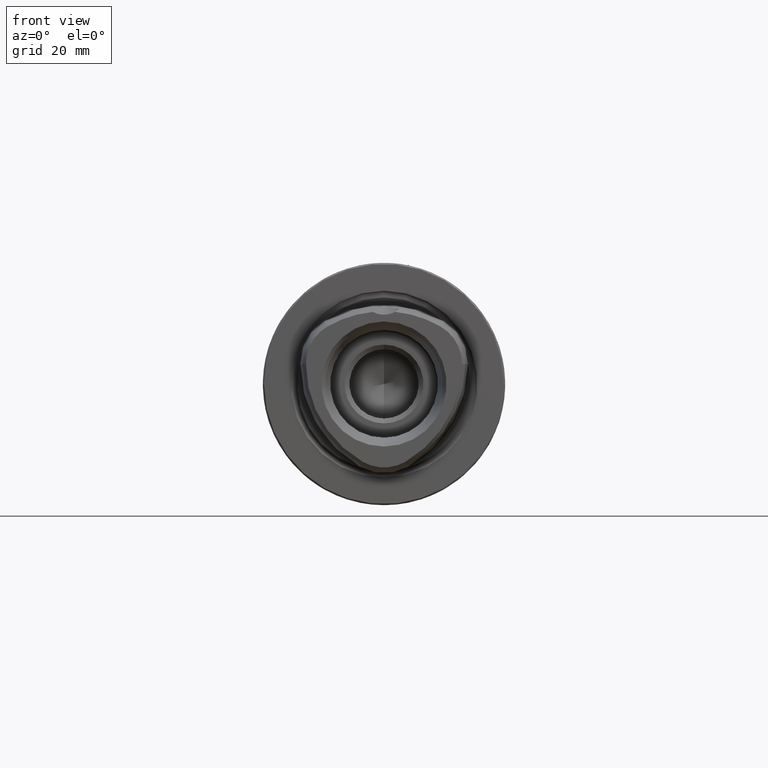
[diagram: clean part render]
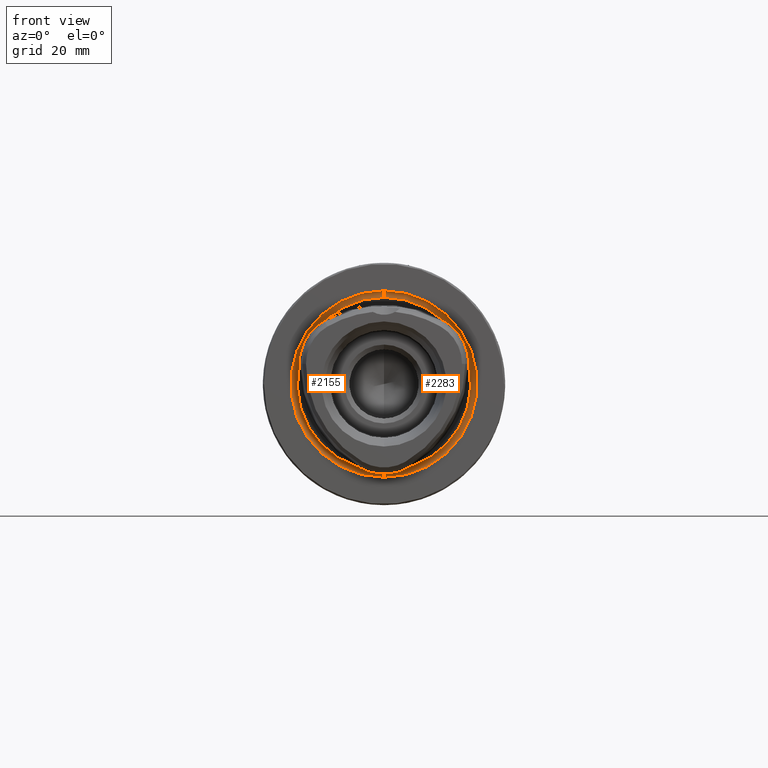
[diagram: same view with one multi-face feature highlighted, each face labeled with its STEP entity id]
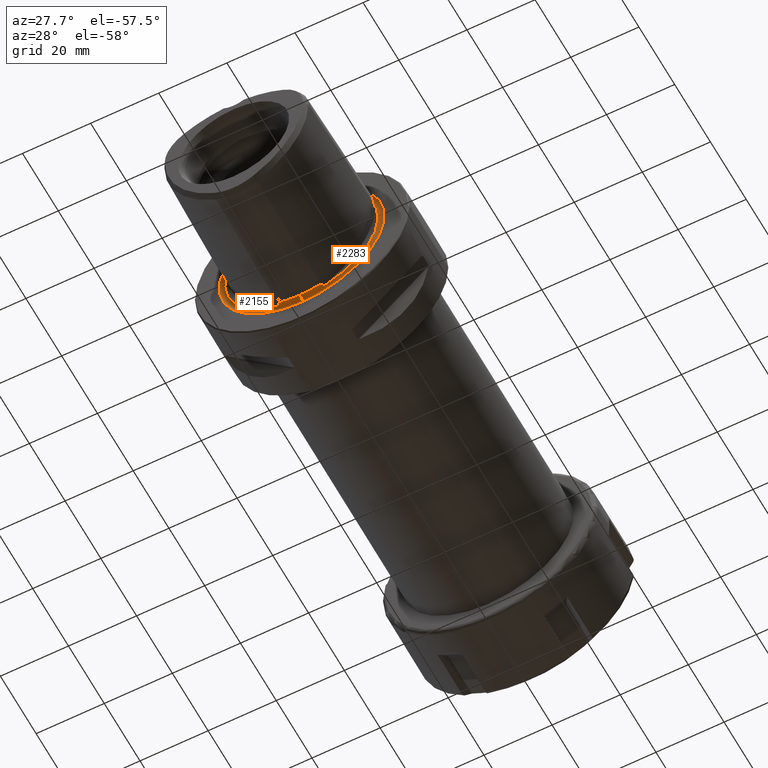
[diagram: same view with one multi-face feature highlighted, each face labeled with its STEP entity id]
A machine part, front view. The highlighted faces form ONE feature: a constant-radius fillet chain: 2 tangent blend faces with common blend radius 1 mm. The faces share edges in the B-rep.
A second angle (auxiliary view) of the same feature is appended — it is thin or edge-on in the first view.
Their STEP definitions:
[1] entity #2283 (Torus):
#6=CARTESIAN_POINT('',(0.E0,-2.E-1,0.E0));
#7=DIRECTION('',(0.E0,-1.E0,0.E0));
#8=DIRECTION('',(6.658709666680E-1,0.E0,7.460669244435E-1));
#9=AXIS2_PLACEMENT_3D('',#6,#7,#8);
#26=CARTESIAN_POINT('',(0.E0,-2.E-1,0.E0));
#27=DIRECTION('',(0.E0,-1.E0,0.E0));
#28=DIRECTION('',(3.131774275690E-1,0.E0,-9.496946345333E-1));
#29=AXIS2_PLACEMENT_3D('',#26,#27,#28);
#98=CARTESIAN_POINT('',(0.E0,-6.E-1,-2.345E1));
#99=DIRECTION('',(1.E0,0.E0,0.E0));
#100=DIRECTION('',(0.E0,6.E-1,-8.E-1));
#101=AXIS2_PLACEMENT_3D('',#98,#99,#100);
#103=CARTESIAN_POINT('',(0.E0,-6.E-1,2.345E1));
#104=DIRECTION('',(-1.E0,0.E0,0.E0));
#105=DIRECTION('',(0.E0,6.E-1,8.E-1));
#106=AXIS2_PLACEMENT_3D('',#103,#104,#105);
#160=CARTESIAN_POINT('',(5.354621867281E0,-1.307106781187E0,-2.210355665093E1));
#166=CARTESIAN_POINT('',(0.E0,-1.307106781187E0,0.E0));
#167=DIRECTION('',(0.E0,-1.E0,0.E0));
#168=DIRECTION('',(0.E0,0.E0,-1.E0));
#169=AXIS2_PLACEMENT_3D('',#166,#167,#168);
#194=CARTESIAN_POINT('',(2.181955250733E1,-1.307106781187E0,6.414539760739E0));
#196=CARTESIAN_POINT('',(1.646493064005E1,-1.307106781187E0,1.568901689019E1));
#202=CARTESIAN_POINT('',(0.E0,-1.307106781187E0,0.E0));
#203=DIRECTION('',(0.E0,-1.E0,0.E0));
#204=DIRECTION('',(9.594009125138E-1,0.E0,2.820458988671E-1));
#205=AXIS2_PLACEMENT_3D('',#202,#203,#204);
#217=CARTESIAN_POINT('',(6.444111099421E0,-3.949768888776E-1,
-2.152742874010E1));
#218=CARTESIAN_POINT('',(6.466843756329E0,-4.285219770172E-1,
-2.151328899226E1));
#219=CARTESIAN_POINT('',(6.499910713214E0,-4.956858617722E-1,
-2.149211221277E1));
#220=CARTESIAN_POINT('',(6.508750291476E0,-6.075729291747E-1,
-2.148370595897E1));
#221=CARTESIAN_POINT('',(6.473569820909E0,-7.111560290561E-1,
-2.150118079242E1));
#222=CARTESIAN_POINT('',(6.406362602678E0,-8.055237990932E-1,
-2.153739593992E1));
#223=CARTESIAN_POINT('',(6.318164689657E0,-8.883103095725E-1,
-2.158576434973E1));
#224=CARTESIAN_POINT('',(6.218852354502E0,-9.600478737446E-1,
-2.164038833218E1));
#225=CARTESIAN_POINT('',(6.109368617277E0,-1.025045568227E0,-2.170046465427E1));
#226=CARTESIAN_POINT('',(5.986709464679E0,-1.086677413966E0,-2.176740871575E1));
#227=CARTESIAN_POINT('',(5.851031994199E0,-1.145343261433E0,-2.184089024308E1));
#228=CARTESIAN_POINT('',(5.701146893331E0,-1.201726492982E0,-2.192129080548E1));
#229=CARTESIAN_POINT('',(5.536385823377E0,-1.255908519550E0,-2.200866708670E1));
#230=CARTESIAN_POINT('',(5.416862863098E0,-1.290339718657E0,-2.207122662725E1));
#231=CARTESIAN_POINT('',(5.354621867281E0,-1.307106781187E0,-2.210355665093E1));
#233=CARTESIAN_POINT('',(6.444111099421E0,-3.949768888776E-1,
-2.152742874010E1));
#234=CARTESIAN_POINT('',(6.436132603523E0,-3.832035467106E-1,
-2.153239137692E1));
#235=CARTESIAN_POINT('',(6.426498417065E0,-3.607067491622E-1,
-2.154056471028E1));
#236=CARTESIAN_POINT('',(6.437417548755E0,-3.205098041948E-1,
-2.154858739091E1));
#237=CARTESIAN_POINT('',(6.471932539151E0,-2.901159892790E-1,
-2.154818464104E1));
#238=CARTESIAN_POINT('',(6.515264757031E0,-2.675089536253E-1,
-2.154318309320E1));
#239=CARTESIAN_POINT('',(6.565292054649E0,-2.497145708955E-1,
-2.153478273473E1));
#240=CARTESIAN_POINT('',(6.620732877254E0,-2.354496274850E-1,
-2.152353655505E1));
#241=CARTESIAN_POINT('',(6.681411331071E0,-2.239607407031E-1,
-2.150959297774E1));
#242=CARTESIAN_POINT('',(6.747140958899E0,-2.148569028662E-1,
-2.149300207828E1));
#243=CARTESIAN_POINT('',(6.818651519471E0,-2.079206638095E-1,
-2.147352696168E1));
#244=CARTESIAN_POINT('',(6.893989389175E0,-2.030772469695E-1,
-2.145156887405E1));
#245=CARTESIAN_POINT('',(6.981629807386E0,-2.002662850820E-1,
-2.142484494214E1));
#246=CARTESIAN_POINT('',(7.028034198366E0,-1.999489322461E-1,
-2.140888520453E1));
#247=CARTESIAN_POINT('',(7.063354863197E0,-2.000013402356E-1,
-2.139717727189E1));
#249=CARTESIAN_POINT('',(2.206207802627E1,-2.000013335964E-1,4.582014144035E0));
#250=CARTESIAN_POINT('',(2.205411401893E1,-1.999459776531E-1,4.620590721476E0));
#251=CARTESIAN_POINT('',(2.204350507135E1,-2.003562489834E-1,4.674367239939E0));
#252=CARTESIAN_POINT('',(2.202113823309E1,-2.037381456428E-1,4.770094999011E0));
#253=CARTESIAN_POINT('',(2.200081544009E1,-2.095274155276E-1,4.851786563674E0));
#254=CARTESIAN_POINT('',(2.198031500529E1,-2.178224689201E-1,4.927802501447E0));
#255=CARTESIAN_POINT('',(2.196025469203E1,-2.287670523475E-1,4.996352421953E0));
#256=CARTESIAN_POINT('',(2.194048650601E1,-2.427216334968E-1,5.058105777003E0));
#257=CARTESIAN_POINT('',(2.192100146352E1,-2.604034810103E-1,5.112862748353E0));
#258=CARTESIAN_POINT('',(2.190196517905E1,-2.831271671679E-1,5.159283909537E0));
#259=CARTESIAN_POINT('',(2.188313607019E1,-3.138352963443E-1,5.195922150730E0));
#260=CARTESIAN_POINT('',(2.186834976251E1,-3.573814318794E-1,5.206323445358E0));
#261=CARTESIAN_POINT('',(2.186569636266E1,-3.819776685882E-1,5.193319162142E0));
#262=CARTESIAN_POINT('',(2.186535571680E1,-3.949768888776E-1,5.182950453144E0));
#264=CARTESIAN_POINT('',(2.181955250733E1,-1.307106781187E0,6.414539760739E0));
#265=CARTESIAN_POINT('',(2.182328353933E1,-1.287068046528E0,6.330800588313E0));
#266=CARTESIAN_POINT('',(2.182975723293E1,-1.245939004004E0,6.171959365256E0));
#267=CARTESIAN_POINT('',(2.183707238669E1,-1.182071632523E0,5.960160156195E0));
#268=CARTESIAN_POINT('',(2.184257955461E1,-1.116106813176E0,5.772583667973E0));
#269=CARTESIAN_POINT('',(2.184676676043E1,-1.047407575174E0,5.606491473781E0));
#270=CARTESIAN_POINT('',(2.184999060103E1,-9.754901265815E-1,5.461366614732E0));
#271=CARTESIAN_POINT('',(2.185253981372E1,-9.006351195329E-1,5.338602182025E0));
#272=CARTESIAN_POINT('',(2.185479544495E1,-8.183394305425E-1,5.233910202353E0));
#273=CARTESIAN_POINT('',(2.185708678608E1,-7.226246158750E-1,5.150910770741E0));
#274=CARTESIAN_POINT('',(2.185960335556E1,-6.159829609911E-1,5.106103813376E0));
#275=CARTESIAN_POINT('',(2.186249537979E1,-5.022273369898E-1,5.114202596367E0));
#276=CARTESIAN_POINT('',(2.186441934714E1,-4.307092336690E-1,5.154448875612E0));
#277=CARTESIAN_POINT('',(2.186535571680E1,-3.949768888776E-1,5.182950453144E0));
#279=CARTESIAN_POINT('',(1.542124461738E1,-3.949768888776E-1,1.634447828696E1));
#280=CARTESIAN_POINT('',(1.539763290809E1,-4.285219770172E-1,1.635709547142E1));
#281=CARTESIAN_POINT('',(1.536275980064E1,-4.956858617722E-1,1.637514390636E1));
#282=CARTESIAN_POINT('',(1.535105998216E1,-6.075729291748E-1,1.637859607879E1));
#283=CARTESIAN_POINT('',(1.538378386714E1,-7.111560290557E-1,1.635686631429E1));
#284=CARTESIAN_POINT('',(1.544875071399E1,-8.055237990933E-1,1.631677072973E1));
#285=CARTESIAN_POINT('',(1.553473794214E1,-8.883103095724E-1,1.626457330140E1));
#286=CARTESIAN_POINT('',(1.563169986618E1,-9.600478737446E-1,1.620587828747E1));
#287=CARTESIAN_POINT('',(1.573846935589E1,-1.025045568227E0,1.614110075078E1));
#288=CARTESIAN_POINT('',(1.585777419006E1,-1.086677413966E0,1.606834683936E1));
#289=CARTESIAN_POINT('',(1.598924979467E1,-1.145343261433E0,1.598758746687E1));
#290=CARTESIAN_POINT('',(1.613382127463E1,-1.201726492982E0,1.589798344307E1));
#291=CARTESIAN_POINT('',(1.629187188883E1,-1.255908519550E0,1.579898431155E1));
#292=CARTESIAN_POINT('',(1.640581152033E1,-1.290339718657E0,1.572675416188E1));
#293=CARTESIAN_POINT('',(1.646493064005E1,-1.307106781187E0,1.568901689019E1));
#295=CARTESIAN_POINT('',(1.542124461738E1,-3.949768888776E-1,1.634447828696E1));
#296=CARTESIAN_POINT('',(1.542953163488E1,-3.832035467106E-1,1.634005002524E1));
#297=CARTESIAN_POINT('',(1.544142704243E1,-3.607067491622E-1,1.633579324170E1));
#298=CARTESIAN_POINT('',(1.544291532182E1,-3.205098041948E-1,1.634926082744E1));
#299=CARTESIAN_POINT('',(1.542530903501E1,-2.901159892790E-1,1.637895031101E1));
#300=CARTESIAN_POINT('',(1.539931145857E1,-2.675089536253E-1,1.641397633857E1));
#301=CARTESIAN_POINT('',(1.536702288594E1,-2.497145708955E-1,1.645310106997E1));
#302=CARTESIAN_POINT('',(1.532956299731E1,-2.354496274850E-1,1.649549114086E1));
#303=CARTESIAN_POINT('',(1.528714827833E1,-2.239607407031E-1,1.654106843484E1));
#304=CARTESIAN_POINT('',(1.523991532364E1,-2.148569028663E-1,1.658969651199E1));
#305=CARTESIAN_POINT('',(1.518729409901E1,-2.079206638094E-1,1.664188891802E1));
#306=CARTESIAN_POINT('',(1.513060889734E1,-2.030772469696E-1,1.669615437487E1));
#307=CARTESIAN_POINT('',(1.506364510338E1,-2.002662850818E-1,1.675869126872E1));
#308=CARTESIAN_POINT('',(1.502662132224E1,-1.999489322461E-1,1.679089870364E1));
#309=CARTESIAN_POINT('',(1.499882162273E1,-2.000013402356E-1,1.681563333034E1));
#1187=CARTESIAN_POINT('',(0.E0,0.E0,0.E0));
#1188=DIRECTION('',(0.E0,-1.E0,0.E0));
#1189=DIRECTION('',(0.E0,0.E0,-1.E0));
#1190=AXIS2_PLACEMENT_3D('',#1187,#1188,#1189);
#1818=CARTESIAN_POINT('',(0.E0,0.E0,-2.425E1));
#1819=CARTESIAN_POINT('',(0.E0,0.E0,2.425E1));
#1820=VERTEX_POINT('',#1818);
#1821=VERTEX_POINT('',#1819);
#1822=CARTESIAN_POINT('',(0.E0,-1.307106781187E0,-2.274289321881E1));
#1823=VERTEX_POINT('',#1822);
#1824=CARTESIAN_POINT('',(0.E0,-2.E-1,2.253348486101E1));
#1825=VERTEX_POINT('',#1824);
#1933=CARTESIAN_POINT('',(1.500305276347E1,-2.E-1,1.680930344155E1));
#1935=VERTEX_POINT('',#1933);
#1939=VERTEX_POINT('',#196);
#1941=VERTEX_POINT('',#279);
#1962=CARTESIAN_POINT('',(2.205881018207E1,-2.E-1,4.588373108007E0));
#1963=CARTESIAN_POINT('',(7.055757411389E0,-2.E-1,-2.139767655260E1));
#1964=VERTEX_POINT('',#1962);
#1965=VERTEX_POINT('',#1963);
#1966=VERTEX_POINT('',#160);
#1969=VERTEX_POINT('',#194);
#1970=VERTEX_POINT('',#217);
#1971=VERTEX_POINT('',#277);
#2258=CARTESIAN_POINT('',(0.E0,-6.E-1,0.E0));
#2259=DIRECTION('',(0.E0,-1.E0,0.E0));
#2260=DIRECTION('',(0.E0,0.E0,1.E0));
#2261=AXIS2_PLACEMENT_3D('',#2258,#2259,#2260);
#2262=TOROIDAL_SURFACE('',#2261,2.345E1,1.E0);
#2264=ORIENTED_EDGE('',*,*,#2263,.F.);
#2266=ORIENTED_EDGE('',*,*,#2265,.T.);
#2267=ORIENTED_EDGE('',*,*,#2117,.T.);
#2269=ORIENTED_EDGE('',*,*,#2268,.T.);
#2271=ORIENTED_EDGE('',*,*,#2270,.F.);
#2272=ORIENTED_EDGE('',*,*,#2219,.T.);
#2273=ORIENTED_EDGE('',*,*,#2233,.F.);
#2274=ORIENTED_EDGE('',*,*,#2251,.T.);
#2275=ORIENTED_EDGE('',*,*,#2093,.T.);
#2276=ORIENTED_EDGE('',*,*,#2144,.F.);
#2278=ORIENTED_EDGE('',*,*,#2277,.F.);
#2279=ORIENTED_EDGE('',*,*,#2140,.T.);
#2280=ORIENTED_EDGE('',*,*,#2199,.T.);
#2281=EDGE_LOOP('',(#2264,#2266,#2267,#2269,#2271,#2272,#2273,#2274,#2275,#2276,
#2278,#2279,#2280));
#2282=FACE_OUTER_BOUND('',#2281,.F.);
#2283=ADVANCED_FACE('',(#2282),#2262,.F.);
#10=CIRCLE('',#9,2.253348486101E1);
#30=CIRCLE('',#29,2.253348486101E1);
#102=CIRCLE('',#101,1.E0);
#107=CIRCLE('',#106,1.E0);
#170=CIRCLE('',#169,2.274289321881E1);
#206=CIRCLE('',#205,2.274289321881E1);
#232=B_SPLINE_CURVE_WITH_KNOTS('',3,(#217,#218,#219,#220,#221,#222,#223,#224,
#225,#226,#227,#228,#229,#230,#231),.UNSPECIFIED.,.F.,.F.,(4,1,1,1,1,1,1,1,1,1,
1,1,4),(0.E0,8.333333333333E-2,1.666666666667E-1,2.5E-1,3.333333333333E-1,
4.166666666667E-1,5.E-1,5.833333333333E-1,6.666666666667E-1,7.5E-1,
8.333333333333E-1,9.166666666667E-1,1.E0),.UNSPECIFIED.);
#248=B_SPLINE_CURVE_WITH_KNOTS('',3,(#233,#234,#235,#236,#237,#238,#239,#240,
#241,#242,#243,#244,#245,#246,#247),.UNSPECIFIED.,.F.,.F.,(4,1,1,1,1,1,1,1,1,1,
1,1,4),(0.E0,8.333333333333E-2,1.666666666667E-1,2.5E-1,3.333333333333E-1,
4.166666666667E-1,5.E-1,5.833333333333E-1,6.666666666667E-1,7.5E-1,
8.333333333333E-1,9.166666666667E-1,1.E0),.UNSPECIFIED.);
#263=B_SPLINE_CURVE_WITH_KNOTS('',3,(#249,#250,#251,#252,#253,#254,#255,#256,
#257,#258,#259,#260,#261,#262),.UNSPECIFIED.,.F.,.F.,(4,1,1,1,1,1,1,1,1,1,1,4),(
0.E0,9.090909090909E-2,1.818181818182E-1,2.727272727273E-1,3.636363636364E-1,
4.545454545455E-1,5.454545454545E-1,6.363636363636E-1,7.272727272727E-1,
8.181818181818E-1,9.090909090909E-1,1.E0),.UNSPECIFIED.);
#278=B_SPLINE_CURVE_WITH_KNOTS('',3,(#264,#265,#266,#267,#268,#269,#270,#271,
#272,#273,#274,#275,#276,#277),.UNSPECIFIED.,.F.,.F.,(4,1,1,1,1,1,1,1,1,1,1,4),(
0.E0,9.090909090909E-2,1.818181818182E-1,2.727272727273E-1,3.636363636364E-1,
4.545454545455E-1,5.454545454545E-1,6.363636363636E-1,7.272727272727E-1,
8.181818181818E-1,9.090909090909E-1,1.E0),.UNSPECIFIED.);
#294=B_SPLINE_CURVE_WITH_KNOTS('',3,(#279,#280,#281,#282,#283,#284,#285,#286,
#287,#288,#289,#290,#291,#292,#293),.UNSPECIFIED.,.F.,.F.,(4,1,1,1,1,1,1,1,1,1,
1,1,4),(0.E0,8.333333333333E-2,1.666666666667E-1,2.5E-1,3.333333333333E-1,
4.166666666667E-1,5.E-1,5.833333333333E-1,6.666666666667E-1,7.5E-1,
8.333333333333E-1,9.166666666667E-1,1.E0),.UNSPECIFIED.);
#310=B_SPLINE_CURVE_WITH_KNOTS('',3,(#295,#296,#297,#298,#299,#300,#301,#302,
#303,#304,#305,#306,#307,#308,#309),.UNSPECIFIED.,.F.,.F.,(4,1,1,1,1,1,1,1,1,1,
1,1,4),(0.E0,8.333333333333E-2,1.666666666667E-1,2.5E-1,3.333333333333E-1,
4.166666666667E-1,5.E-1,5.833333333333E-1,6.666666666667E-1,7.5E-1,
8.333333333333E-1,9.166666666667E-1,1.E0),.UNSPECIFIED.);
#1191=CIRCLE('',#1190,2.425E1);
#2093=EDGE_CURVE('',#1935,#1825,#10,.T.);
#2117=EDGE_CURVE('',#1965,#1964,#30,.T.);
#2140=EDGE_CURVE('',#1820,#1823,#102,.T.);
#2144=EDGE_CURVE('',#1821,#1825,#107,.T.);
#2199=EDGE_CURVE('',#1823,#1966,#170,.T.);
#2219=EDGE_CURVE('',#1969,#1939,#206,.T.);
#2233=EDGE_CURVE('',#1941,#1939,#294,.T.);
#2251=EDGE_CURVE('',#1941,#1935,#310,.T.);
#2263=EDGE_CURVE('',#1970,#1966,#232,.T.);
#2265=EDGE_CURVE('',#1970,#1965,#248,.T.);
#2268=EDGE_CURVE('',#1964,#1971,#263,.T.);
#2270=EDGE_CURVE('',#1969,#1971,#278,.T.);
#2277=EDGE_CURVE('',#1820,#1821,#1191,.T.);
[2] entity #2155 (Torus):
#1=CARTESIAN_POINT('',(0.E0,-2.E-1,0.E0));
#2=DIRECTION('',(0.E0,-1.E0,0.E0));
#3=DIRECTION('',(0.E0,0.E0,1.E0));
#4=AXIS2_PLACEMENT_3D('',#1,#2,#3);
#16=CARTESIAN_POINT('',(0.E0,-2.E-1,0.E0));
#17=DIRECTION('',(0.E0,-1.E0,0.E0));
#18=DIRECTION('',(-9.790483928724E-1,0.E0,2.036277103291E-1));
#19=AXIS2_PLACEMENT_3D('',#16,#17,#18);
#36=CARTESIAN_POINT('',(-2.186535571680E1,-3.949768888776E-1,5.182950453144E0));
#37=CARTESIAN_POINT('',(-2.186447666442E1,-4.285219770169E-1,5.156193520846E0));
#38=CARTESIAN_POINT('',(-2.186267051385E1,-4.956858617715E-1,5.116968306410E0));
#39=CARTESIAN_POINT('',(-2.185981027364E1,-6.075729291750E-1,5.105109880176E0));
#40=CARTESIAN_POINT('',(-2.185735368805E1,-7.111560290556E-1,5.144314478128E0));
#41=CARTESIAN_POINT('',(-2.185511331667E1,-8.055237990934E-1,5.220625210186E0));
#42=CARTESIAN_POINT('',(-2.185290263180E1,-8.883103095720E-1,5.321191048329E0));
#43=CARTESIAN_POINT('',(-2.185055222068E1,-9.600478737447E-1,5.434510044707E0));
#44=CARTESIAN_POINT('',(-2.184783797316E1,-1.025045568227E0,5.559363903490E0));
#45=CARTESIAN_POINT('',(-2.184448365474E1,-1.086677413966E0,5.699061876387E0));
#46=CARTESIAN_POINT('',(-2.184028178887E1,-1.145343261433E0,5.853302776207E0));
#47=CARTESIAN_POINT('',(-2.183496816796E1,-1.201726492982E0,6.023307362410E0));
#48=CARTESIAN_POINT('',(-2.182825771221E1,-1.255908519550E0,6.209682775155E0));
#49=CARTESIAN_POINT('',(-2.182267438343E1,-1.290339718657E0,6.344472465364E0));
#50=CARTESIAN_POINT('',(-2.181955250733E1,-1.307106781187E0,6.414539760739E0));
#52=CARTESIAN_POINT('',(-2.186535571680E1,-3.949768888776E-1,5.182950453144E0));
#53=CARTESIAN_POINT('',(-2.186566423841E1,-3.832035467105E-1,5.192341351686E0));
#54=CARTESIAN_POINT('',(-2.186792545950E1,-3.607067491620E-1,5.204771468582E0));
#55=CARTESIAN_POINT('',(-2.188033287057E1,-3.205098041944E-1,5.199326563464E0));
#56=CARTESIAN_POINT('',(-2.189724157416E1,-2.901159892785E-1,5.169234330037E0));
#57=CARTESIAN_POINT('',(-2.191457621560E1,-2.675089536248E-1,5.129206754629E0));
#58=CARTESIAN_POINT('',(-2.193231494059E1,-2.497145708950E-1,5.081681664776E0));
#59=CARTESIAN_POINT('',(-2.195029587455E1,-2.354496274846E-1,5.028045414150E0));
#60=CARTESIAN_POINT('',(-2.196855960945E1,-2.239607407025E-1,4.968524543027E0));
#61=CARTESIAN_POINT('',(-2.198705628236E1,-2.148569028663E-1,4.903305565809E0));
#62=CARTESIAN_POINT('',(-2.200594561915E1,-2.079206638082E-1,4.831638045446E0));
#63=CARTESIAN_POINT('',(-2.202459828400E1,-2.030772469709E-1,4.755414492455E0));
#64=CARTESIAN_POINT('',(-2.204527492012E1,-2.002662850799E-1,4.666153698574E0));
#65=CARTESIAN_POINT('',(-2.205465550051E1,-1.999489322461E-1,4.617986446493E0));
#66=CARTESIAN_POINT('',(-2.206217646582E1,-2.000013402356E-1,4.581543887177E0));
#68=CARTESIAN_POINT('',(-7.062898389039E0,-2.000013335964E-1,
-2.139732714916E1));
#69=CARTESIAN_POINT('',(-7.025508089311E0,-1.999459776530E-1,
-2.140971840522E1));
#70=CARTESIAN_POINT('',(-6.973631747589E0,-2.003562489837E-1,
-2.142741897881E1));
#71=CARTESIAN_POINT('',(-6.879545672068E0,-2.037381456427E-1,
-2.145591263535E1));
#72=CARTESIAN_POINT('',(-6.798637301326E0,-2.095274155277E-1,
-2.147915835540E1));
#73=CARTESIAN_POINT('',(-6.722555351784E0,-2.178224689202E-1,
-2.149941242890E1));
#74=CARTESIAN_POINT('',(-6.653159222283E0,-2.287670523476E-1,
-2.151631464774E1));
#75=CARTESIAN_POINT('',(-6.589795155107E0,-2.427216334969E-1,
-2.153007157413E1));
#76=CARTESIAN_POINT('',(-6.532631705618E0,-2.604034810104E-1,
-2.154057551797E1));
#77=CARTESIAN_POINT('',(-6.482911658530E0,-2.831271671681E-1,
-2.154730019263E1));
#78=CARTESIAN_POINT('',(-6.441767456476E0,-3.138352963445E-1,
-2.154931282662E1));
#79=CARTESIAN_POINT('',(-6.425366517257E0,-3.573814318794E-1,
-2.154170815586E1));
#80=CARTESIAN_POINT('',(-6.435301856957E0,-3.819776685883E-1,
-2.153290810258E1));
#81=CARTESIAN_POINT('',(-6.444111099421E0,-3.949768888777E-1,
-2.152742874010E1));
#83=CARTESIAN_POINT('',(-5.354621867281E0,-1.307106781187E0,-2.210355665093E1));
#84=CARTESIAN_POINT('',(-5.429007633890E0,-1.287068046528E0,-2.206491823320E1));
#85=CARTESIAN_POINT('',(-5.569805015026E0,-1.245939004004E0,-2.199110400479E1));
#86=CARTESIAN_POINT('',(-5.756886087455E0,-1.182071632523E0,-2.189153950925E1));
#87=CARTESIAN_POINT('',(-5.922085675370E0,-1.116106813176E0,-2.180252061246E1));
#88=CARTESIAN_POINT('',(-6.068019337822E0,-1.047407575174E0,-2.172310074198E1));
#89=CARTESIAN_POINT('',(-6.195313072776E0,-9.754901265815E-1,
-2.165333024031E1));
#90=CARTESIAN_POINT('',(-6.302904796527E0,-9.006351195329E-1,
-2.159415570690E1));
#91=CARTESIAN_POINT('',(-6.394698526112E0,-8.183394305424E-1,
-2.154376315102E1));
#92=CARTESIAN_POINT('',(-6.467723812949E0,-7.226246158754E-1,
-2.150424779483E1));
#93=CARTESIAN_POINT('',(-6.507786061038E0,-6.159829609908E-1,
-2.148402372926E1));
#94=CARTESIAN_POINT('',(-6.502218321340E0,-5.022273369906E-1,
-2.149057768720E1));
#95=CARTESIAN_POINT('',(-6.468326004783E0,-4.307092336693E-1,
-2.151236703143E1));
#96=CARTESIAN_POINT('',(-6.444111099421E0,-3.949768888777E-1,
-2.152742874010E1));
#98=CARTESIAN_POINT('',(0.E0,-6.E-1,-2.345E1));
#99=DIRECTION('',(1.E0,0.E0,0.E0));
#100=DIRECTION('',(0.E0,6.E-1,-8.E-1));
#101=AXIS2_PLACEMENT_3D('',#98,#99,#100);
#103=CARTESIAN_POINT('',(0.E0,-6.E-1,2.345E1));
#104=DIRECTION('',(-1.E0,0.E0,0.E0));
#105=DIRECTION('',(0.E0,6.E-1,8.E-1));
#106=AXIS2_PLACEMENT_3D('',#103,#104,#105);
#108=CARTESIAN_POINT('',(-1.499917965734E1,-2.000013335964E-1,
1.681531295076E1));
#109=CARTESIAN_POINT('',(-1.502860594972E1,-1.999459776531E-1,
1.678912762937E1));
#110=CARTESIAN_POINT('',(-1.506987331442E1,-2.003562489835E-1,
1.675305176409E1));
#111=CARTESIAN_POINT('',(-1.514159256353E1,-2.037381456428E-1,
1.668581762958E1));
#112=CARTESIAN_POINT('',(-1.520217813810E1,-2.095274155276E-1,
1.662737179353E1));
#113=CARTESIAN_POINT('',(-1.525775965369E1,-2.178224689201E-1,
1.657160992697E1));
#114=CARTESIAN_POINT('',(-1.530709546970E1,-2.287670523475E-1,
1.651996222592E1));
#115=CARTESIAN_POINT('',(-1.535069135092E1,-2.427216334968E-1,
1.647196579709E1));
#116=CARTESIAN_POINT('',(-1.538836975790E1,-2.604034810103E-1,
1.642771276963E1));
#117=CARTESIAN_POINT('',(-1.541905352052E1,-2.831271671680E-1,
1.638801628309E1));
#118=CARTESIAN_POINT('',(-1.544136861371E1,-3.138352963443E-1,
1.635339067589E1));
#119=CARTESIAN_POINT('',(-1.544298324525E1,-3.573814318794E-1,
1.633538471050E1));
#120=CARTESIAN_POINT('',(-1.543039450571E1,-3.819776685882E-1,
1.633958894043E1));
#121=CARTESIAN_POINT('',(-1.542124461738E1,-3.949768888777E-1,
1.634447828696E1));
#123=CARTESIAN_POINT('',(-1.646493064005E1,-1.307106781187E0,1.568901689019E1));
#124=CARTESIAN_POINT('',(-1.639427590544E1,-1.287068046528E0,1.573411764489E1));
#125=CARTESIAN_POINT('',(-1.625995221790E1,-1.245939004004E0,1.581914463953E1));
#126=CARTESIAN_POINT('',(-1.608018629923E1,-1.182071632523E0,1.593137935305E1));
#127=CARTESIAN_POINT('',(-1.592049387924E1,-1.116106813176E0,1.602993694449E1));
#128=CARTESIAN_POINT('',(-1.577874742261E1,-1.047407575174E0,1.611660926820E1));
#129=CARTESIAN_POINT('',(-1.565467752825E1,-9.754901265814E-1,
1.619196362558E1));
#130=CARTESIAN_POINT('',(-1.554963501719E1,-9.006351195330E-1,
1.625555352488E1));
#131=CARTESIAN_POINT('',(-1.546009691884E1,-8.183394305421E-1,
1.630985294867E1));
#132=CARTESIAN_POINT('',(-1.538936297313E1,-7.226246158752E-1,
1.635333702409E1));
#133=CARTESIAN_POINT('',(-1.535181729453E1,-6.159829609907E-1,
1.637791991588E1));
#134=CARTESIAN_POINT('',(-1.536027705845E1,-5.022273369899E-1,
1.637637509083E1));
#135=CARTESIAN_POINT('',(-1.539609334236E1,-4.307092336691E-1,
1.635791815581E1));
#136=CARTESIAN_POINT('',(-1.542124461738E1,-3.949768888777E-1,
1.634447828696E1));
#143=CARTESIAN_POINT('',(-2.181955250733E1,-1.307106781187E0,6.414539760739E0));
#149=CARTESIAN_POINT('',(0.E0,-1.307106781187E0,0.E0));
#150=DIRECTION('',(0.E0,1.E0,0.E0));
#151=DIRECTION('',(-9.594009125138E-1,0.E0,2.820458988671E-1));
#152=AXIS2_PLACEMENT_3D('',#149,#150,#151);
#158=CARTESIAN_POINT('',(-1.646493064005E1,-1.307106781187E0,1.568901689019E1));
#171=CARTESIAN_POINT('',(0.E0,-1.307106781187E0,0.E0));
#172=DIRECTION('',(0.E0,1.E0,0.E0));
#173=DIRECTION('',(0.E0,0.E0,-1.E0));
#174=AXIS2_PLACEMENT_3D('',#171,#172,#173);
#180=CARTESIAN_POINT('',(-5.354621867281E0,-1.307106781187E0,
-2.210355665093E1));
#1192=CARTESIAN_POINT('',(0.E0,0.E0,0.E0));
#1193=DIRECTION('',(0.E0,-1.E0,0.E0));
#1194=DIRECTION('',(0.E0,0.E0,1.E0));
#1195=AXIS2_PLACEMENT_3D('',#1192,#1193,#1194);
#1818=CARTESIAN_POINT('',(0.E0,0.E0,-2.425E1));
#1819=CARTESIAN_POINT('',(0.E0,0.E0,2.425E1));
#1820=VERTEX_POINT('',#1818);
#1821=VERTEX_POINT('',#1819);
#1822=CARTESIAN_POINT('',(0.E0,-1.307106781187E0,-2.274289321881E1));
#1823=VERTEX_POINT('',#1822);
#1824=CARTESIAN_POINT('',(0.E0,-2.E-1,2.253348486101E1));
#1825=VERTEX_POINT('',#1824);
#1932=CARTESIAN_POINT('',(-1.500305276346E1,-2.E-1,1.680930344155E1));
#1934=VERTEX_POINT('',#1932);
#1938=VERTEX_POINT('',#158);
#1942=VERTEX_POINT('',#136);
#1947=CARTESIAN_POINT('',(-7.055757411389E0,-2.E-1,-2.139767655260E1));
#1948=CARTESIAN_POINT('',(-2.205881018207E1,-2.E-1,4.588373108007E0));
#1949=VERTEX_POINT('',#1947);
#1950=VERTEX_POINT('',#1948);
#1952=VERTEX_POINT('',#143);
#1955=VERTEX_POINT('',#180);
#1956=VERTEX_POINT('',#36);
#1957=VERTEX_POINT('',#96);
#2124=CARTESIAN_POINT('',(0.E0,-6.E-1,0.E0));
#2125=DIRECTION('',(0.E0,-1.E0,0.E0));
#2126=DIRECTION('',(0.E0,0.E0,1.E0));
#2127=AXIS2_PLACEMENT_3D('',#2124,#2125,#2126);
#2128=TOROIDAL_SURFACE('',#2127,2.345E1,1.E0);
#2130=ORIENTED_EDGE('',*,*,#2129,.F.);
#2132=ORIENTED_EDGE('',*,*,#2131,.T.);
#2133=ORIENTED_EDGE('',*,*,#2105,.T.);
#2135=ORIENTED_EDGE('',*,*,#2134,.T.);
#2137=ORIENTED_EDGE('',*,*,#2136,.F.);
#2139=ORIENTED_EDGE('',*,*,#2138,.F.);
#2141=ORIENTED_EDGE('',*,*,#2140,.F.);
#2143=ORIENTED_EDGE('',*,*,#2142,.F.);
#2145=ORIENTED_EDGE('',*,*,#2144,.T.);
#2146=ORIENTED_EDGE('',*,*,#2091,.T.);
#2148=ORIENTED_EDGE('',*,*,#2147,.T.);
#2150=ORIENTED_EDGE('',*,*,#2149,.F.);
#2152=ORIENTED_EDGE('',*,*,#2151,.F.);
#2153=EDGE_LOOP('',(#2130,#2132,#2133,#2135,#2137,#2139,#2141,#2143,#2145,#2146,
#2148,#2150,#2152));
#2154=FACE_OUTER_BOUND('',#2153,.F.);
#2155=ADVANCED_FACE('',(#2154),#2128,.F.);
#5=CIRCLE('',#4,2.253348486101E1);
#20=CIRCLE('',#19,2.253348486101E1);
#51=B_SPLINE_CURVE_WITH_KNOTS('',3,(#36,#37,#38,#39,#40,#41,#42,#43,#44,#45,#46,
#47,#48,#49,#50),.UNSPECIFIED.,.F.,.F.,(4,1,1,1,1,1,1,1,1,1,1,1,4),(0.E0,
8.333333333333E-2,1.666666666667E-1,2.5E-1,3.333333333333E-1,4.166666666667E-1,
5.E-1,5.833333333333E-1,6.666666666667E-1,7.5E-1,8.333333333333E-1,
9.166666666667E-1,1.E0),.UNSPECIFIED.);
#67=B_SPLINE_CURVE_WITH_KNOTS('',3,(#52,#53,#54,#55,#56,#57,#58,#59,#60,#61,#62,
#63,#64,#65,#66),.UNSPECIFIED.,.F.,.F.,(4,1,1,1,1,1,1,1,1,1,1,1,4),(0.E0,
8.333333333333E-2,1.666666666667E-1,2.5E-1,3.333333333333E-1,4.166666666667E-1,
5.E-1,5.833333333333E-1,6.666666666667E-1,7.5E-1,8.333333333333E-1,
9.166666666667E-1,1.E0),.UNSPECIFIED.);
#82=B_SPLINE_CURVE_WITH_KNOTS('',3,(#68,#69,#70,#71,#72,#73,#74,#75,#76,#77,#78,
#79,#80,#81),.UNSPECIFIED.,.F.,.F.,(4,1,1,1,1,1,1,1,1,1,1,4),(0.E0,
9.090909090909E-2,1.818181818182E-1,2.727272727273E-1,3.636363636364E-1,
4.545454545455E-1,5.454545454545E-1,6.363636363636E-1,7.272727272727E-1,
8.181818181818E-1,9.090909090909E-1,1.E0),.UNSPECIFIED.);
#97=B_SPLINE_CURVE_WITH_KNOTS('',3,(#83,#84,#85,#86,#87,#88,#89,#90,#91,#92,#93,
#94,#95,#96),.UNSPECIFIED.,.F.,.F.,(4,1,1,1,1,1,1,1,1,1,1,4),(0.E0,
9.090909090909E-2,1.818181818182E-1,2.727272727273E-1,3.636363636364E-1,
4.545454545455E-1,5.454545454545E-1,6.363636363636E-1,7.272727272727E-1,
8.181818181818E-1,9.090909090909E-1,1.E0),.UNSPECIFIED.);
#102=CIRCLE('',#101,1.E0);
#107=CIRCLE('',#106,1.E0);
#122=B_SPLINE_CURVE_WITH_KNOTS('',3,(#108,#109,#110,#111,#112,#113,#114,#115,
#116,#117,#118,#119,#120,#121),.UNSPECIFIED.,.F.,.F.,(4,1,1,1,1,1,1,1,1,1,1,4),(
0.E0,9.090909090909E-2,1.818181818182E-1,2.727272727273E-1,3.636363636364E-1,
4.545454545455E-1,5.454545454545E-1,6.363636363636E-1,7.272727272727E-1,
8.181818181818E-1,9.090909090909E-1,1.E0),.UNSPECIFIED.);
#137=B_SPLINE_CURVE_WITH_KNOTS('',3,(#123,#124,#125,#126,#127,#128,#129,#130,
#131,#132,#133,#134,#135,#136),.UNSPECIFIED.,.F.,.F.,(4,1,1,1,1,1,1,1,1,1,1,4),(
0.E0,9.090909090909E-2,1.818181818182E-1,2.727272727273E-1,3.636363636364E-1,
4.545454545455E-1,5.454545454545E-1,6.363636363636E-1,7.272727272727E-1,
8.181818181818E-1,9.090909090909E-1,1.E0),.UNSPECIFIED.);
#153=CIRCLE('',#152,2.274289321881E1);
#175=CIRCLE('',#174,2.274289321881E1);
#1196=CIRCLE('',#1195,2.425E1);
#2091=EDGE_CURVE('',#1825,#1934,#5,.T.);
#2105=EDGE_CURVE('',#1950,#1949,#20,.T.);
#2129=EDGE_CURVE('',#1956,#1952,#51,.T.);
#2131=EDGE_CURVE('',#1956,#1950,#67,.T.);
#2134=EDGE_CURVE('',#1949,#1957,#82,.T.);
#2136=EDGE_CURVE('',#1955,#1957,#97,.T.);
#2138=EDGE_CURVE('',#1823,#1955,#175,.T.);
#2140=EDGE_CURVE('',#1820,#1823,#102,.T.);
#2142=EDGE_CURVE('',#1821,#1820,#1196,.T.);
#2144=EDGE_CURVE('',#1821,#1825,#107,.T.);
#2147=EDGE_CURVE('',#1934,#1942,#122,.T.);
#2149=EDGE_CURVE('',#1938,#1942,#137,.T.);
#2151=EDGE_CURVE('',#1952,#1938,#153,.T.);